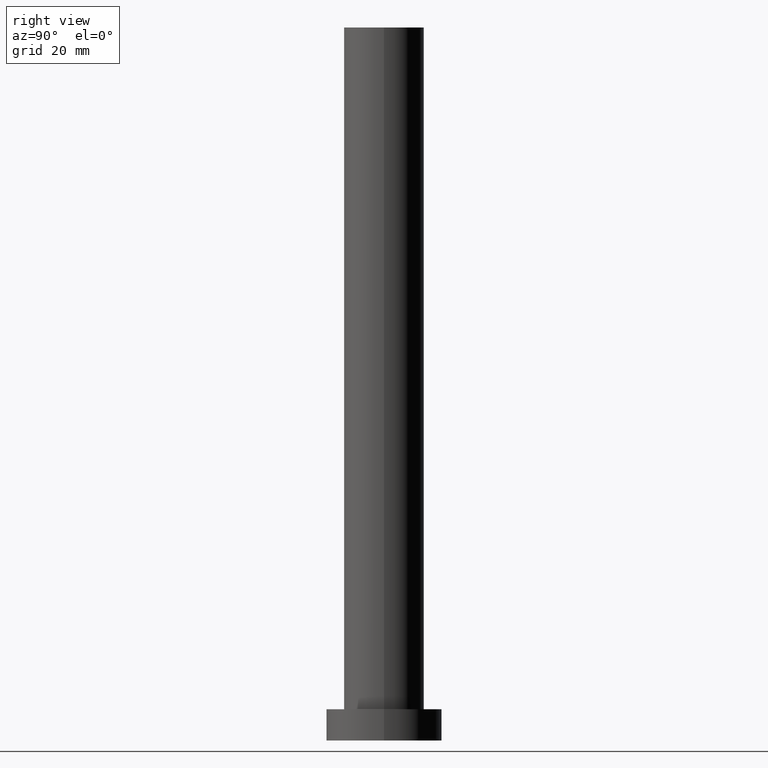
[diagram: clean part render]
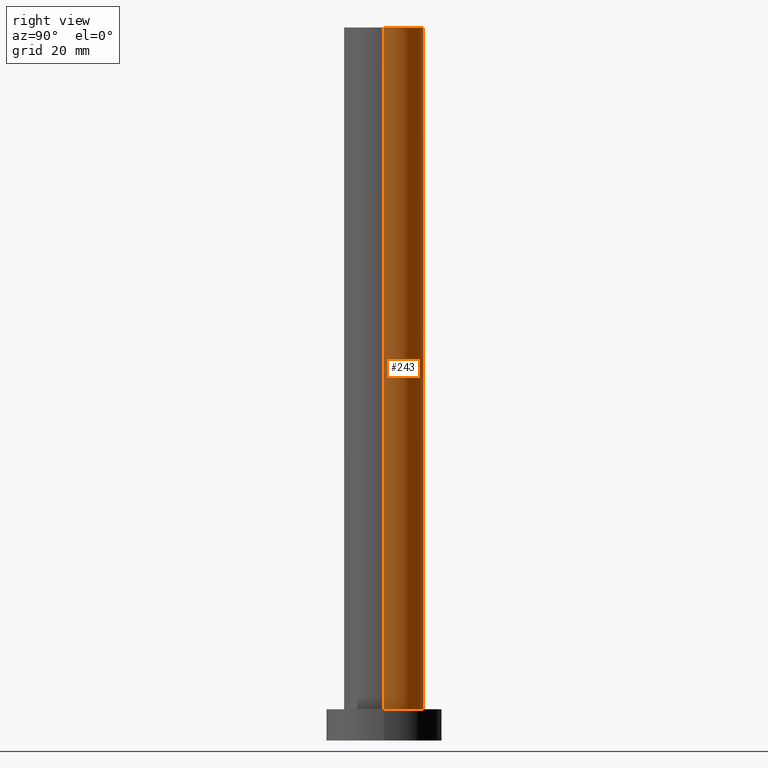
[diagram: same view with one face highlighted and labeled with its STEP entity id]
A machine part, right view. The second image highlights one B-rep face of the part: STEP entity #243.
In plain terms, the highlighted cylindrical surface (partial cylindrical patch) has radius 9 mm, axis along (-0, -0, -1).
Its self-contained STEP definition (entity closure, byte-faithful):
#2 = DIRECTION ( 'NONE',  ( 0.000000000000000000, 0.000000000000000000, 1.000000000000000000 ) ) ;
#3 = EDGE_LOOP ( 'NONE', ( #114, #46, #164, #21 ) ) ;
#8 = DIRECTION ( 'NONE',  ( -0.000000000000000000, -0.000000000000000000, -1.000000000000000000 ) ) ;
#18 = CARTESIAN_POINT ( 'NONE',  ( -9.000000000000000000, 0.000000000000000000, 7.000000000000000000 ) ) ;
#21 = ORIENTED_EDGE ( 'NONE', *, *, #45, .F. ) ;
#23 = CARTESIAN_POINT ( 'NONE',  ( 9.000000000000000000, 1.102182119232617714E-15, 7.000000000000000000 ) ) ;
#42 = DIRECTION ( 'NONE',  ( 0.000000000000000000, 0.000000000000000000, 1.000000000000000000 ) ) ;
#45 = EDGE_CURVE ( 'NONE', #180, #93, #157, .T. ) ;
#46 = ORIENTED_EDGE ( 'NONE', *, *, #163, .T. ) ;
#47 = AXIS2_PLACEMENT_3D ( 'NONE', #187, #8, #79 ) ;
#49 = AXIS2_PLACEMENT_3D ( 'NONE', #72, #2, #53 ) ;
#51 = VECTOR ( 'NONE', #126, 1000.000000000000000 ) ;
#53 = DIRECTION ( 'NONE',  ( 1.000000000000000000, 0.000000000000000000, 0.000000000000000000 ) ) ;
#72 = CARTESIAN_POINT ( 'NONE',  ( 0.000000000000000000, 0.000000000000000000, 160.0000000000000000 ) ) ;
#79 = DIRECTION ( 'NONE',  ( -1.000000000000000000, 0.000000000000000000, 0.000000000000000000 ) ) ;
#83 = AXIS2_PLACEMENT_3D ( 'NONE', #161, #42, #122 ) ;
#93 = VERTEX_POINT ( 'NONE', #18 ) ;
#96 = CARTESIAN_POINT ( 'NONE',  ( -9.000000000000000000, 0.000000000000000000, 160.0000000000000000 ) ) ;
#97 = FACE_OUTER_BOUND ( 'NONE', #3, .T. ) ;
#98 = CYLINDRICAL_SURFACE ( 'NONE', #47, 9.000000000000000000 ) ;
#99 = CIRCLE ( 'NONE', #49, 9.000000000000000000 ) ;
#103 = EDGE_CURVE ( 'NONE', #217, #180, #99, .T. ) ;
#114 = ORIENTED_EDGE ( 'NONE', *, *, #103, .F. ) ;
#116 = DIRECTION ( 'NONE',  ( -0.000000000000000000, -0.000000000000000000, -1.000000000000000000 ) ) ;
#122 = DIRECTION ( 'NONE',  ( 1.000000000000000000, 0.000000000000000000, 0.000000000000000000 ) ) ;
#126 = DIRECTION ( 'NONE',  ( -0.000000000000000000, -0.000000000000000000, -1.000000000000000000 ) ) ;
#131 = CARTESIAN_POINT ( 'NONE',  ( 9.000000000000000000, 1.102182119232617714E-15, 160.0000000000000000 ) ) ;
#138 = VERTEX_POINT ( 'NONE', #23 ) ;
#157 = LINE ( 'NONE', #96, #247 ) ;
#161 = CARTESIAN_POINT ( 'NONE',  ( 0.000000000000000000, 0.000000000000000000, 7.000000000000000000 ) ) ;
#163 = EDGE_CURVE ( 'NONE', #217, #138, #224, .T. ) ;
#164 = ORIENTED_EDGE ( 'NONE', *, *, #203, .T. ) ;
#169 = CARTESIAN_POINT ( 'NONE',  ( 9.000000000000000000, 1.102182119232617714E-15, 160.0000000000000000 ) ) ;
#170 = CIRCLE ( 'NONE', #83, 9.000000000000000000 ) ;
#180 = VERTEX_POINT ( 'NONE', #208 ) ;
#187 = CARTESIAN_POINT ( 'NONE',  ( 0.000000000000000000, 0.000000000000000000, 160.0000000000000000 ) ) ;
#203 = EDGE_CURVE ( 'NONE', #138, #93, #170, .T. ) ;
#208 = CARTESIAN_POINT ( 'NONE',  ( -9.000000000000000000, 0.000000000000000000, 160.0000000000000000 ) ) ;
#217 = VERTEX_POINT ( 'NONE', #169 ) ;
#224 = LINE ( 'NONE', #131, #51 ) ;
#243 = ADVANCED_FACE ( 'NONE', ( #97 ), #98, .T. ) ;
#247 = VECTOR ( 'NONE', #116, 1000.000000000000000 ) ;